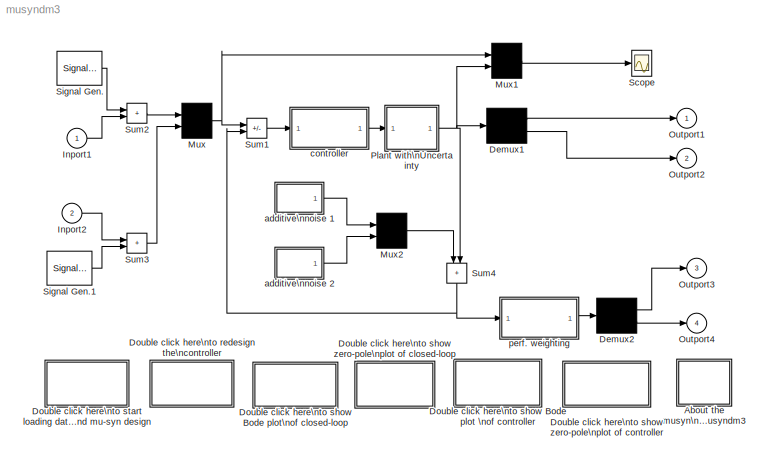
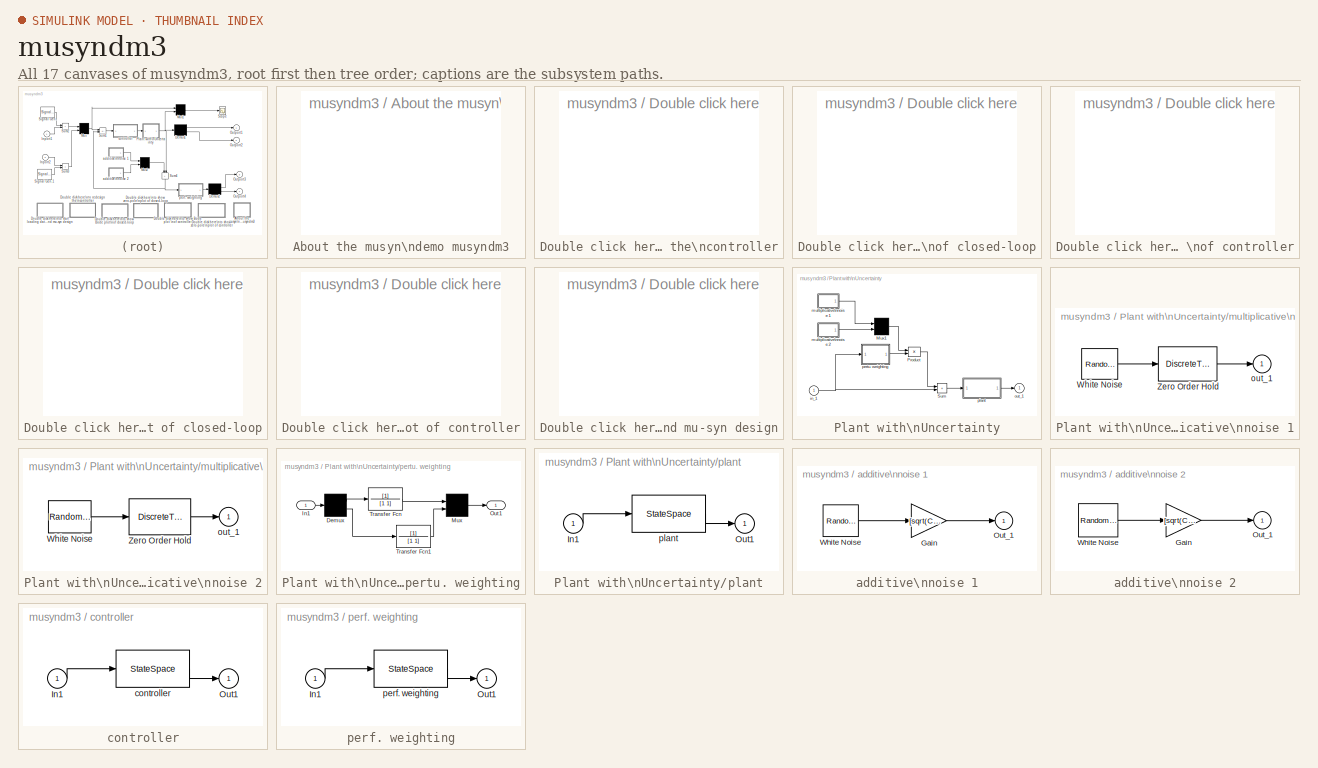
[diagram: thumbnail index - all 17 canvases of the model, root first then tree order]
MODEL musyndm3
KIND model
CONFIG AbsTol = 1e-6
CONFIG FixedStep = auto
CONFIG MaxStep = auto
CONFIG PreLoadFcn = mudata3
CONFIG RelTol = 1e-3
CONFIG Solver = ode15s
CONFIG SolverMode = SingleTasking
CONFIG StartTime = 0.0
CONFIG StopTime = 200
BLOCK [SubSystem] About the musyn\ndemo musyndm3
  MaskDisplay = disp('?')
  MaskIconFrame = on
  MaskIconOpaque = on
  MaskIconRotate = none
  MaskIconUnits = autoscale
  OpenFcn = clc; more(23); help mudata3; more off; fprintf('\\n>>\\n');
  Ports = [0, 0, 0, 0, 0]
  ShowPortLabels = on
BLOCK [Demux] Demux1
  Outputs = 2
  Ports = [1, 2, 0, 0, 0]
BLOCK [Demux] Demux2
  Outputs = 2
  Ports = [1, 2, 0, 0, 0]
BLOCK [SubSystem] Double click here\nto redesign the\ncontroller
  MaskDisplay = disp('Re-Design')
  MaskIconFrame = on
  MaskIconOpaque = on
  MaskIconRotate = none
  MaskIconUnits = autoscale
  OpenFcn = eval('if ~exist(''mu''),fprintf(''\\nMust be licensed for Mu Toolbox\\n''), else, fprintf(''\\nCtrl_C to abort MuSyn Calculation\\n\\n''); mudes3; end')
  Ports = [0, 0, 0, 0, 0]
  ShowPortLabels = on
BLOCK [SubSystem] Double click here\nto show Bode plot \nof controller
  MaskDisplay = disp('Controller\\nBode Plot')
  MaskIconFrame = on
  MaskIconOpaque = on
  MaskIconRotate = none
  MaskIconUnits = autoscale
  OpenFcn = if ~exist('mu'),fprintf('\\nMust be licensed for MuSyn Toolbox\\n'),elseif ~exist('k1'), printf('Must Load Data & Design First\\n'),else eval('vplot(''bode'',frsp(k1,logspace(0,4,32)));'); end
  Ports = [0, 0, 0, 0, 0]
  ShowPortLabels = on
BLOCK [SubSystem] Double click here\nto show Bode plot\nof closed-loop
  MaskDisplay = disp('Closed-Loop\\nBode Plot')
  MaskIconFrame = on
  MaskIconOpaque = on
  MaskIconRotate = none
  MaskIconUnits = autoscale
  OpenFcn = if ~exist('mu'),fprintf('\\nMust be licensed for MuSyn Toolbox\\n'),elseif ~exist('g1'),fprintf('\\nMust Load Data & Design First\\n'),else eval('vplot(''bode'',frsp(g1,logspace(0,4,32)));'); end
  Ports = [0, 0, 0, 0, 0]
  ShowPortLabels = on
BLOCK [SubSystem] Double click here\nto show zero-pole\nplot of closed-loop
  MaskDisplay = disp('Closed-Loop\\nZero-Pole\\nLocation')
  MaskIconFrame = on
  MaskIconOpaque = on
  MaskIconRotate = none
  MaskIconUnits = autoscale
  OpenFcn = if ~exist('mu'),fprintf('\\nMust be licensed for Mu Toolbox\\n'),elseif ~exist('g1'), fprintf('Must Load Data & Design First'), else,clf,plot(1:10), eval('[x,y,z,w]=unpck(g1);clf;pzmap(x,y,z,w);clear x y z w');end
  Ports = [0, 0, 0, 0, 0]
  ShowPortLabels = on
BLOCK [SubSystem] Double click here\nto show zero-pole\nplot of controller
  MaskDisplay = disp('Controller\\nZero-Pole\\nLocation')
  MaskIconFrame = on
  MaskIconOpaque = on
  MaskIconRotate = none
  MaskIconUnits = autoscale
  OpenFcn = if ~exist('mu'),fprintf('\\nMust be licensed for Mu Toolbox\\n'),elseif ~exist('k1'), fprintf('Must Load Data & Design First'), else,clf,plot(1:10), eval('[x,y,z,w]=unpck(k1);clf;pzmap(x,y,z,w);clear xy z w');end
  Ports = [0, 0, 0, 0, 0]
  ShowPortLabels = on
BLOCK [SubSystem] Double click here\nto start loading data\nand mu-syn design
  MaskDisplay = disp('Re-Load\\nData')
  MaskIconFrame = on
  MaskIconOpaque = on
  MaskIconRotate = none
  MaskIconUnits = autoscale
  OpenFcn = if ~exist('mu'),fprintf('\\nMust be licensed for MuSyn Toolbox\\n'), else, fprintf('\\nLoading Data\\nWarning: New data will overlap the original working space data\\n>>\\n'); mudata3; end
  Ports = [0, 0, 0, 0, 0]
  ShowPortLabels = on
BLOCK [Inport] Inport1
  DataType = auto
  Interpolate = on
  Port = 1
  PortWidth = -1
  SampleTime = -1
  SignalType = auto
BLOCK [Inport] Inport2
  DataType = auto
  Interpolate = on
  Port = 2
  PortWidth = -1
  SampleTime = -1
  SignalType = auto
BLOCK [Mux] Mux
  DisplayOption = none
  Inputs = 2
  Ports = [2, 1, 0, 0, 0]
BLOCK [Mux] Mux1
  DisplayOption = none
  Inputs = [2,2]
  Ports = [2, 1, 0, 0, 0]
BLOCK [Mux] Mux2
  DisplayOption = none
  Inputs = 2
  Ports = [2, 1, 0, 0, 0]
BLOCK [Outport] Outport1 
  InitialOutput = []
  OutputWhenDisabled = held
  Port = 1
BLOCK [Outport] Outport2 
  InitialOutput = []
  OutputWhenDisabled = held
  Port = 2
BLOCK [Outport] Outport3
  InitialOutput = []
  OutputWhenDisabled = held
  Port = 3
BLOCK [Outport] Outport4
  InitialOutput = []
  OutputWhenDisabled = held
  Port = 4
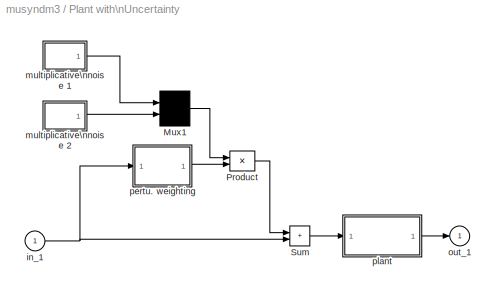
BLOCK [SubSystem] Plant with\nUncertainty
  MaskDisplay = disp('P')\n
  MaskIconFrame = on
  MaskIconOpaque = on
  MaskIconRotate = none
  MaskIconUnits = autoscale
  Ports = [1, 1, 0, 0, 0]
  ShowPortLabels = on
BLOCK [Mux] Plant with\nUncertainty/Mux1
  DisplayOption = none
  Inputs = 2
  Ports = [2, 1, 0, 0, 0]
BLOCK [Product] Plant with\nUncertainty/Product
  Inputs = 2
  Ports = [2, 1, 0, 0, 0]
  SaturateOnIntegerOverflow = on
BLOCK [Sum] Plant with\nUncertainty/Sum
  IconShape = rectangular
  Inputs = ++
  Ports = [2, 1, 0, 0, 0]
  SaturateOnIntegerOverflow = on
BLOCK [Inport] Plant with\nUncertainty/in_1
  DataType = auto
  Interpolate = on
  Port = 1
  PortWidth = -1
  SampleTime = -1
  SignalType = auto
BLOCK [SubSystem] Plant with\nUncertainty/multiplicative\nnoise 1
  MaskCallbackString = ||
  MaskDescription = White noise for continuous (s-domain) systems.\nBand-limited using zero-order-hold.
  MaskDisplay = plot(t(:),r2(:))
  MaskEnableString = on,on,on
  MaskHelp = Implemented using white noise into Zero Order Hold block. For faster simulation set sample time to highest value possible but in accordance with the fastest dynamics of system.
  MaskIconFrame = on
  MaskIconOpaque = on
  MaskIconRotate = none
  MaskIconUnits = autoscale
  MaskInitialization = Cov = @1; Ts = @2; seed = @3; r = rand(1,12)-0.5; r2 = [r(1),r;r,r(12)]; t =[1:13;1:13];
  MaskPromptString = Noise Variance:|Sample Time:|Seed
  MaskStyleString = edit,edit,edit
  MaskTunableValueString = on,on,on
  MaskValueString = 0.02|0.1|68932234
  MaskVisibilityString = on,on,on
  Ports = [0, 1, 0, 0, 0]
  ShowPortLabels = on
BLOCK [RandomNumber] Plant with\nUncertainty/multiplicative\nnoise 1/White Noise
  Mean = 0
  SampleTime = Ts
  Seed = seed
  Variance = 1
BLOCK [DiscreteTransferFcn] Plant with\nUncertainty/multiplicative\nnoise 1/Zero Order Hold
  Denominator = [sqrt(Ts)]
  Numerator = [sqrt(Cov)]
  SampleTime = Ts
BLOCK [Outport] Plant with\nUncertainty/multiplicative\nnoise 1/out_1
  InitialOutput = []
  OutputWhenDisabled = held
  Port = 1
BLOCK [SubSystem] Plant with\nUncertainty/multiplicative\nnoise 2
  MaskCallbackString = ||
  MaskDescription = White noise for continuous (s-domain) systems.\nBand-limited using zero-order-hold.
  MaskDisplay = plot(t(:),r2(:))
  MaskEnableString = on,on,on
  MaskHelp = Implemented using white noise into Zero Order Hold block. For faster simulation set sample time to highest value possible but in accordance with the fastest dynamics of system.
  MaskIconFrame = on
  MaskIconOpaque = on
  MaskIconRotate = none
  MaskIconUnits = autoscale
  MaskInitialization = Cov = @1; Ts = @2; seed = @3; r = rand(1,12)-0.5; r2 = [r(1),r;r,r(12)]; t =[1:13;1:13];
  MaskPromptString = Noise Variance:|Sample Time:|Seed
  MaskStyleString = edit,edit,edit
  MaskTunableValueString = on,on,on
  MaskValueString = 0.02|0.1|683421
  MaskVisibilityString = on,on,on
  Ports = [0, 1, 0, 0, 0]
  ShowPortLabels = on
BLOCK [RandomNumber] Plant with\nUncertainty/multiplicative\nnoise 2/White Noise
  Mean = 0
  SampleTime = Ts
  Seed = seed
  Variance = 1
BLOCK [DiscreteTransferFcn] Plant with\nUncertainty/multiplicative\nnoise 2/Zero Order Hold
  Denominator = [sqrt(Ts)]
  Numerator = [sqrt(Cov)]
  SampleTime = Ts
BLOCK [Outport] Plant with\nUncertainty/multiplicative\nnoise 2/out_1
  InitialOutput = []
  OutputWhenDisabled = held
  Port = 1
BLOCK [Outport] Plant with\nUncertainty/out_1
  InitialOutput = []
  OutputWhenDisabled = held
  Port = 1
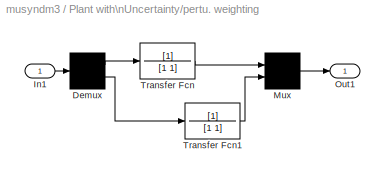
BLOCK [SubSystem] Plant with\nUncertainty/pertu. weighting
  MaskCallbackString = |||
  MaskDescription = Performance weighting function:\n[ w1  0  ]\n[ 0   w2 ]
  MaskDisplay = disp('   input\\nweighting');\n
  MaskEnableString = on,on,on,on
  MaskHelp = This is the weighting function of the plant model.
  MaskIconFrame = on
  MaskIconOpaque = on
  MaskIconRotate = none
  MaskIconUnits = autoscale
  MaskPromptString = numerator of w1|denominator of w1|numerator of w2|denominator of w2
  MaskStyleString = edit,edit,edit,edit
  MaskTunableValueString = on,on,on,on
  MaskType = Transfer Fcn
  MaskValueString = num_i1|den_i1|num_i2|den_i2
  MaskVariables = num_i1=@1;den_i1=@2;num_i2=@3;den_i2=@4;
  MaskVisibilityString = on,on,on,on
  Ports = [1, 1, 0, 0, 0]
  ShowPortLabels = on
BLOCK [Demux] Plant with\nUncertainty/pertu. weighting/Demux
  Outputs = 2
  Ports = [1, 2, 0, 0, 0]
BLOCK [Inport] Plant with\nUncertainty/pertu. weighting/In1
  DataType = auto
  Interpolate = on
  Port = 1
  PortWidth = -1
  SampleTime = -1
  SignalType = auto
BLOCK [Mux] Plant with\nUncertainty/pertu. weighting/Mux
  DisplayOption = none
  Inputs = 2
  Ports = [2, 1, 0, 0, 0]
BLOCK [Outport] Plant with\nUncertainty/pertu. weighting/Out1
  InitialOutput = []
  OutputWhenDisabled = held
  Port = 1
BLOCK [TransferFcn] Plant with\nUncertainty/pertu. weighting/Transfer Fcn
  Denominator = [1 1]
  Numerator = [1]
BLOCK [TransferFcn] Plant with\nUncertainty/pertu. weighting/Transfer Fcn1
  Denominator = [1 1]
  Numerator = [1]
BLOCK [SubSystem] Plant with\nUncertainty/plant
  MaskCallbackString = |||
  MaskDescription = state space model:
  MaskDisplay = disp('plant\\nmodel')
  MaskEnableString = on,on,on,on
  MaskHelp = system plant
  MaskIconFrame = on
  MaskIconOpaque = on
  MaskIconRotate = none
  MaskIconUnits = autoscale
  MaskInitialization = a=@1; b=@2; c=@3; d=@4;
  MaskPromptString = a: |b: |c: |d:
  MaskStyleString = edit,edit,edit,edit
  MaskTunableValueString = on,on,on,on
  MaskValueString = a|b|c|d
  MaskVisibilityString = on,on,on,on
  Ports = [1, 1, 0, 0, 0]
  ShowPortLabels = on
BLOCK [Inport] Plant with\nUncertainty/plant/In1
  DataType = auto
  Interpolate = on
  Port = 1
  PortWidth = -1
  SampleTime = -1
  SignalType = auto
BLOCK [Outport] Plant with\nUncertainty/plant/Out1
  InitialOutput = []
  OutputWhenDisabled = held
  Port = 1
BLOCK [StateSpace] Plant with\nUncertainty/plant/plant
  A = a
  B = b
  C = c
  D = d
  X0 = 0
BLOCK [Scope] Scope
  DataFormat = Matrix
  Decimation = 1
  Floating = off
  Grid = on
  LimitMaxRows = on
  MaxRows = 5000
  NumInputPorts = 1
  Ports = [1, 0, 0, 0, 0]
  SampleInput = off
  SampleTime = 0
  SaveName = ScopeData
  SaveToWorkspace = off
  TickLabels = on
  TimeRange = 20.000000
  YMax = 5
  YMin = -5
  ZoomMode = on
BLOCK [SignalGenerator] Signal Gen.
  Amplitude = 1.000000
  Frequency = 1.000000
  Units = rad/sec
  WaveForm = square
BLOCK [SignalGenerator] Signal Gen.1
  Amplitude = 3.000000
  Frequency = 0.500000
  Units = rad/sec
  WaveForm = square
BLOCK [Sum] Sum1
  IconShape = rectangular
  Inputs = -+
  Ports = [2, 1, 0, 0, 0]
  SaturateOnIntegerOverflow = on
BLOCK [Sum] Sum2
  IconShape = rectangular
  Inputs = ++
  Ports = [2, 1, 0, 0, 0]
  SaturateOnIntegerOverflow = on
BLOCK [Sum] Sum3
  IconShape = rectangular
  Inputs = ++
  Ports = [2, 1, 0, 0, 0]
  SaturateOnIntegerOverflow = on
BLOCK [Sum] Sum4
  IconShape = rectangular
  Inputs = ++
  MaskIconFrame = on
  MaskIconOpaque = on
  MaskIconRotate = none
  MaskIconUnits = autoscale
  Ports = [2, 1, 0, 0, 0]
  SaturateOnIntegerOverflow = on
BLOCK [SubSystem] additive\nnoise 1
  MaskCallbackString = ||
  MaskDescription = White noise for continuous (s-domain) systems.\nBand-limited using zero-order-hold.
  MaskDisplay = plot(t(:),r2(:))
  MaskEnableString = on,on,on
  MaskHelp = Implemented using white noise into Zero-Order Hold block. The seed and power can be vectors of the same length to produce a vector of white noise sources. For faster simulation, set sample time to the highest value possible but in accordance with the fastest dynamics of system.
  MaskIconFrame = on
  MaskIconOpaque = on
  MaskIconRotate = none
  MaskIconUnits = autoscale
  MaskInitialization = Cov = @1; Ts = @2; seed = @3; r = rand(1,12); r2 = [r(1),r;r,r(12)]; t =[1:13;1:13];
  MaskPromptString = Noise Power:|Sample Time:|Seed
  MaskStyleString = edit,edit,edit
  MaskTunableValueString = on,on,on
  MaskValueString = 0.001|0.1|79841
  MaskVisibilityString = on,on,on
  Ports = [0, 1, 0, 0, 0]
  ShowPortLabels = on
BLOCK [Gain] additive\nnoise 1/Gain
  Gain = [sqrt(Cov)]/[sqrt(Ts)]
  SaturateOnIntegerOverflow = on
BLOCK [Outport] additive\nnoise 1/Out_1
  InitialOutput = []
  OutputWhenDisabled = held
  Port = 1
BLOCK [RandomNumber] additive\nnoise 1/White Noise
  Mean = 0
  SampleTime = Ts
  Seed = seed
  Variance = 1
BLOCK [SubSystem] additive\nnoise 2
  MaskCallbackString = ||
  MaskDescription = White noise for continuous (s-domain) systems.\nBand-limited using zero-order-hold.
  MaskDisplay = plot(t(:),r2(:))
  MaskEnableString = on,on,on
  MaskHelp = Implemented using white noise into Zero-Order Hold block. The seed and power can be vectors of the same length to produce a vector of white noise sources. For faster simulation, set sample time to the highest value possible but in accordance with the fastest dynamics of system.
  MaskIconFrame = on
  MaskIconOpaque = on
  MaskIconRotate = none
  MaskIconUnits = autoscale
  MaskInitialization = Cov = @1; Ts = @2; seed = @3; r = rand(1,12); r2 = [r(1),r;r,r(12)]; t =[1:13;1:13];
  MaskPromptString = Noise Power:|Sample Time:|Seed
  MaskStyleString = edit,edit,edit
  MaskTunableValueString = on,on,on
  MaskValueString = 0.001|0.1|123441
  MaskVisibilityString = on,on,on
  Ports = [0, 1, 0, 0, 0]
  ShowPortLabels = on
BLOCK [Gain] additive\nnoise 2/Gain
  Gain = [sqrt(Cov)]/[sqrt(Ts)]
  SaturateOnIntegerOverflow = on
BLOCK [Outport] additive\nnoise 2/Out_1
  InitialOutput = []
  OutputWhenDisabled = held
  Port = 1
BLOCK [RandomNumber] additive\nnoise 2/White Noise
  Mean = 0
  SampleTime = Ts
  Seed = seed
  Variance = 1
BLOCK [SubSystem] controller
  MaskCallbackString = |||
  MaskDescription = H_infty Controller:
  MaskDisplay = disp('H_infinity\\nController')
  MaskEnableString = on,on,on,on
  MaskHelp = . Mask and unmask this block to see how it works.Usinf Mu Analysis and Synthesis Toolbox to design a H_infinity Controller. Change the parameters, see the designed system.
  MaskIconFrame = on
  MaskIconOpaque = on
  MaskIconRotate = none
  MaskIconUnits = autoscale
  MaskInitialization = ak=@1;bk=@2;ck=@3;dk=@4;
  MaskPromptString = ak:|bk:|ck:|dk:
  MaskStyleString = edit,edit,edit,edit
  MaskTunableValueString = on,on,on,on
  MaskValueString = ak|bk|ck|dk
  MaskVisibilityString = on,on,on,on
  Ports = [1, 1, 0, 0, 0]
  ShowPortLabels = on
BLOCK [Inport] controller/In1
  DataType = auto
  Interpolate = on
  Port = 1
  PortWidth = -1
  SampleTime = -1
  SignalType = auto
BLOCK [Outport] controller/Out1
  InitialOutput = []
  OutputWhenDisabled = held
  Port = 1
BLOCK [StateSpace] controller/controller
  A = ak
  B = bk
  C = ck
  D = dk
  X0 = 0
BLOCK [SubSystem] perf. weighting
  MaskCallbackString = |||
  MaskDescription = Performance weighting function:\n[w1  0]\n[ 0 w2]
  MaskDisplay = disp('output\\nweighting.')
  MaskEnableString = on,on,on,on
  MaskHelp = the weighting function of the plant model.
  MaskIconFrame = on
  MaskIconOpaque = on
  MaskIconRotate = none
  MaskIconUnits = autoscale
  MaskInitialization = [ap,bp,cp,dp]=unpck(daug(nd2sys(@1,@2),nd2sys(@3,@4)));
  MaskPromptString = numerator of w1:|denominator of w1:|numerator of w2:|denominator of w2:
  MaskStyleString = edit,edit,edit,edit
  MaskTunableValueString = on,on,on,on
  MaskValueString = num_o1|den_o1|num_o2|den_o2
  MaskVisibilityString = on,on,on,on
  Ports = [1, 1, 0, 0, 0]
  ShowPortLabels = on
BLOCK [Inport] perf. weighting/In1
  DataType = auto
  Interpolate = on
  Port = 1
  PortWidth = -1
  SampleTime = -1
  SignalType = auto
BLOCK [Outport] perf. weighting/Out1
  InitialOutput = []
  OutputWhenDisabled = held
  Port = 1
BLOCK [StateSpace] perf. weighting/perf. weighting
  A = ap
  B = bp
  C = cp
  D = dp
  X0 = 0
LINE Demux1:1 -> Outport1 :1
LINE Demux1:2 -> Outport2 :1
LINE Demux2:1 -> Outport3:1
LINE Demux2:2 -> Outport4:1
LINE Inport1:1 -> Sum2:2
LINE Inport2:1 -> Sum3:1
LINE Mux1:1 -> Scope:1
LINE Mux2:1 -> Sum4:1
NET Mux:1 -> Mux1:1, Sum1:1
LINE Plant with\nUncertainty/Mux1:1 -> Plant with\nUncertainty/Product:1
LINE Plant with\nUncertainty/Product:1 -> Plant with\nUncertainty/Sum:1
LINE Plant with\nUncertainty/Sum:1 -> Plant with\nUncertainty/plant:1
NET Plant with\nUncertainty/in_1:1 -> Plant with\nUncertainty/Sum:2, Plant with\nUncertainty/pertu. weighting:1
LINE Plant with\nUncertainty/multiplicative\nnoise 1/White Noise:1 -> Plant with\nUncertainty/multiplicative\nnoise 1/Zero Order Hold:1
LINE Plant with\nUncertainty/multiplicative\nnoise 1/Zero Order Hold:1 -> Plant with\nUncertainty/multiplicative\nnoise 1/out_1:1
LINE Plant with\nUncertainty/multiplicative\nnoise 1:1 -> Plant with\nUncertainty/Mux1:1
LINE Plant with\nUncertainty/multiplicative\nnoise 2/White Noise:1 -> Plant with\nUncertainty/multiplicative\nnoise 2/Zero Order Hold:1
LINE Plant with\nUncertainty/multiplicative\nnoise 2/Zero Order Hold:1 -> Plant with\nUncertainty/multiplicative\nnoise 2/out_1:1
LINE Plant with\nUncertainty/multiplicative\nnoise 2:1 -> Plant with\nUncertainty/Mux1:2
LINE Plant with\nUncertainty/pertu. weighting/Demux:1 -> Plant with\nUncertainty/pertu. weighting/Transfer Fcn:1
LINE Plant with\nUncertainty/pertu. weighting/Demux:2 -> Plant with\nUncertainty/pertu. weighting/Transfer Fcn1:1
LINE Plant with\nUncertainty/pertu. weighting/In1:1 -> Plant with\nUncertainty/pertu. weighting/Demux:1
LINE Plant with\nUncertainty/pertu. weighting/Mux:1 -> Plant with\nUncertainty/pertu. weighting/Out1:1
LINE Plant with\nUncertainty/pertu. weighting/Transfer Fcn1:1 -> Plant with\nUncertainty/pertu. weighting/Mux:2
LINE Plant with\nUncertainty/pertu. weighting/Transfer Fcn:1 -> Plant with\nUncertainty/pertu. weighting/Mux:1
LINE Plant with\nUncertainty/pertu. weighting:1 -> Plant with\nUncertainty/Product:2
LINE Plant with\nUncertainty/plant/In1:1 -> Plant with\nUncertainty/plant/plant:1
LINE Plant with\nUncertainty/plant/plant:1 -> Plant with\nUncertainty/plant/Out1:1
LINE Plant with\nUncertainty/plant:1 -> Plant with\nUncertainty/out_1:1
NET Plant with\nUncertainty:1 -> Demux1:1, Mux1:2, Sum4:2
LINE Signal Gen.1:1 -> Sum3:2
LINE Signal Gen.:1 -> Sum2:1
LINE Sum1:1 -> controller:1
LINE Sum2:1 -> Mux:1
LINE Sum3:1 -> Mux:2
NET Sum4:1 -> Sum1:2, perf. weighting:1
LINE additive\nnoise 1/Gain:1 -> additive\nnoise 1/Out_1:1
LINE additive\nnoise 1/White Noise:1 -> additive\nnoise 1/Gain:1
LINE additive\nnoise 1:1 -> Mux2:1
LINE additive\nnoise 2/Gain:1 -> additive\nnoise 2/Out_1:1
LINE additive\nnoise 2/White Noise:1 -> additive\nnoise 2/Gain:1
LINE additive\nnoise 2:1 -> Mux2:2
LINE controller/In1:1 -> controller/controller:1
LINE controller/controller:1 -> controller/Out1:1
LINE controller:1 -> Plant with\nUncertainty:1
LINE perf. weighting/In1:1 -> perf. weighting/perf. weighting:1
LINE perf. weighting/perf. weighting:1 -> perf. weighting/Out1:1
LINE perf. weighting:1 -> Demux2:1
note: NET lines group one-source signal fan-out (src -> all destinations, sorted); 1:1 wires keep LINE
